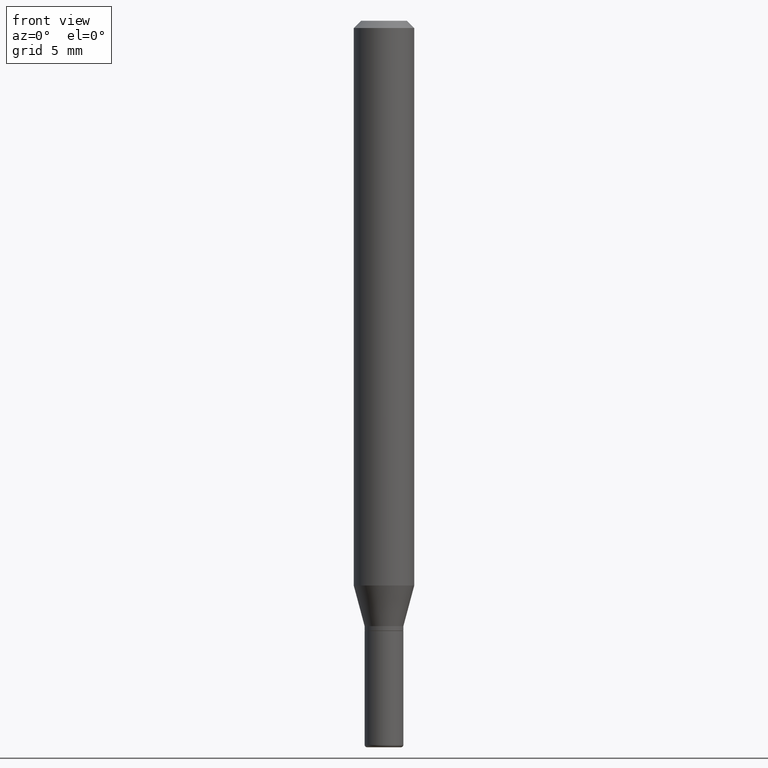
[diagram: clean part render]
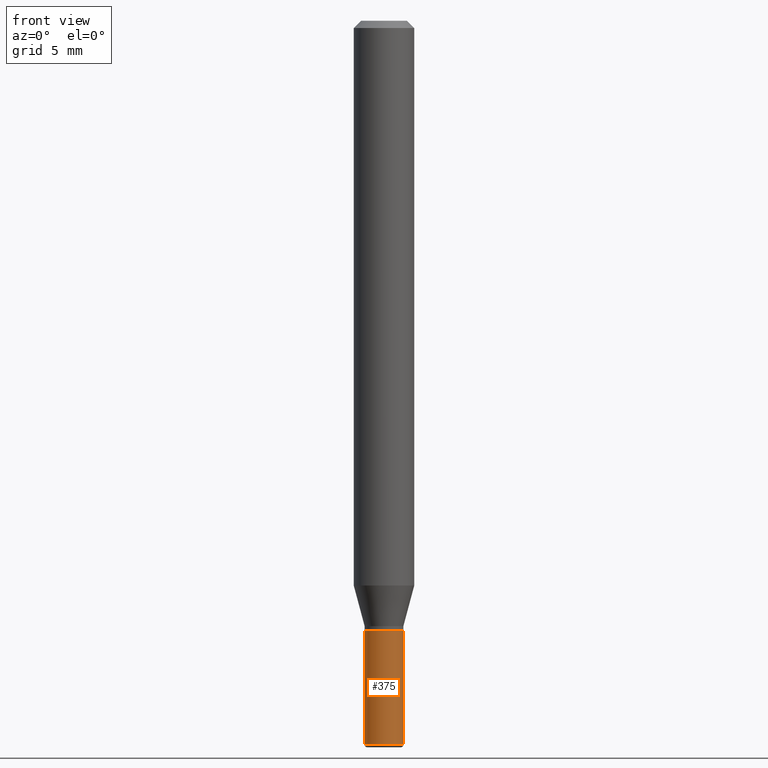
[diagram: same view with one face highlighted and labeled with its STEP entity id]
A machine part, front view. The second image highlights one B-rep face of the part: STEP entity #375.
In plain terms, the highlighted cylindrical surface (edge-blend (fillet) strip) has radius 1.016 mm, axis along (-0, 0, 1).
Its self-contained STEP definition (entity closure, byte-faithful):
#8 = EDGE_CURVE ( 'NONE', #202, #307, #130, .T. ) ;
#15 = FACE_OUTER_BOUND ( 'NONE', #219, .T. ) ;
#18 = VERTEX_POINT ( 'NONE', #200 ) ;
#37 = DIRECTION ( 'NONE',  ( -2.445468806185136597E-29, 3.491481338843145583E-15, 1.000000000000000000 ) ) ;
#45 = CARTESIAN_POINT ( 'NONE',  ( 3.081290695793272291E-29, -4.399266486942364120E-15, -1.260000000000000231 ) ) ;
#54 = AXIS2_PLACEMENT_3D ( 'NONE', #212, #416, #210 ) ;
#91 = DIRECTION ( 'NONE',  ( -2.445468806185136877E-29, 3.491481338843145188E-15, 1.000000000000000000 ) ) ;
#122 = CARTESIAN_POINT ( 'NONE',  ( 0.03999999999999995226, -2.793185071074503332E-16, 1.950470710318371935E-30 ) ) ;
#128 = LINE ( 'NONE', #122, #178 ) ;
#130 = CIRCLE ( 'NONE', #436, 0.04000000000000000083 ) ;
#138 = ORIENTED_EDGE ( 'NONE', *, *, #470, .F. ) ;
#148 = ORIENTED_EDGE ( 'NONE', *, *, #490, .T. ) ;
#166 = DIRECTION ( 'NONE',  ( -2.445468806185136597E-29, 3.491481338843145583E-15, 1.000000000000000000 ) ) ;
#168 = VECTOR ( 'NONE', #91, 39.37007874015748143 ) ;
#175 = CARTESIAN_POINT ( 'NONE',  ( 0.03999999999999989675, -5.499083108677954756E-15, -1.495000000000000329 ) ) ;
#178 = VECTOR ( 'NONE', #296, 39.37007874015748143 ) ;
#182 = VERTEX_POINT ( 'NONE', #175 ) ;
#200 = CARTESIAN_POINT ( 'NONE',  ( -0.03999999999999989675, -4.525298449952393698E-15, -1.495000000000000329 ) ) ;
#202 = VERTEX_POINT ( 'NONE', #366 ) ;
#210 = DIRECTION ( 'NONE',  ( 1.000000000000000000, -6.982962677686277755E-15, 0.000000000000000000 ) ) ;
#212 = CARTESIAN_POINT ( 'NONE',  ( 3.655975865246779683E-29, -5.219764601570503930E-15, -1.495000000000000329 ) ) ;
#219 = EDGE_LOOP ( 'NONE', ( #138, #419, #148, #300 ) ) ;
#249 = CYLINDRICAL_SURFACE ( 'NONE', #370, 0.03999999999999995226 ) ;
#296 = DIRECTION ( 'NONE',  ( -2.445468806185136877E-29, 3.491481338843145188E-15, 1.000000000000000000 ) ) ;
#300 = ORIENTED_EDGE ( 'NONE', *, *, #8, .F. ) ;
#307 = VERTEX_POINT ( 'NONE', #408 ) ;
#336 = CARTESIAN_POINT ( 'NONE',  ( 0.000000000000000000, 0.000000000000000000, 0.000000000000000000 ) ) ;
#366 = CARTESIAN_POINT ( 'NONE',  ( -0.04000000000000000083, -4.525298449952393698E-15, -1.260000000000000231 ) ) ;
#370 = AXIS2_PLACEMENT_3D ( 'NONE', #336, #166, #371 ) ;
#371 = DIRECTION ( 'NONE',  ( 1.000000000000000000, -6.982962677686266711E-15, 4.876176775795935793E-29 ) ) ;
#375 = ADVANCED_FACE ( 'NONE', ( #15 ), #249, .T. ) ;
#387 = CIRCLE ( 'NONE', #54, 0.03999999999999989675 ) ;
#408 = CARTESIAN_POINT ( 'NONE',  ( 0.04000000000000000083, -4.678584994049814947E-15, -1.260000000000000231 ) ) ;
#416 = DIRECTION ( 'NONE',  ( -2.445468806185136597E-29, 3.491481338843145583E-15, 1.000000000000000000 ) ) ;
#417 = LINE ( 'NONE', #456, #168 ) ;
#419 = ORIENTED_EDGE ( 'NONE', *, *, #440, .T. ) ;
#436 = AXIS2_PLACEMENT_3D ( 'NONE', #45, #37, #444 ) ;
#440 = EDGE_CURVE ( 'NONE', #18, #182, #387, .T. ) ;
#444 = DIRECTION ( 'NONE',  ( 1.000000000000000000, -6.982962677686259611E-15, 0.000000000000000000 ) ) ;
#456 = CARTESIAN_POINT ( 'NONE',  ( -0.03999999999999995226, 2.842170943040397351E-16, -1.967574036101960057E-30 ) ) ;
#470 = EDGE_CURVE ( 'NONE', #18, #202, #417, .T. ) ;
#490 = EDGE_CURVE ( 'NONE', #182, #307, #128, .T. ) ;